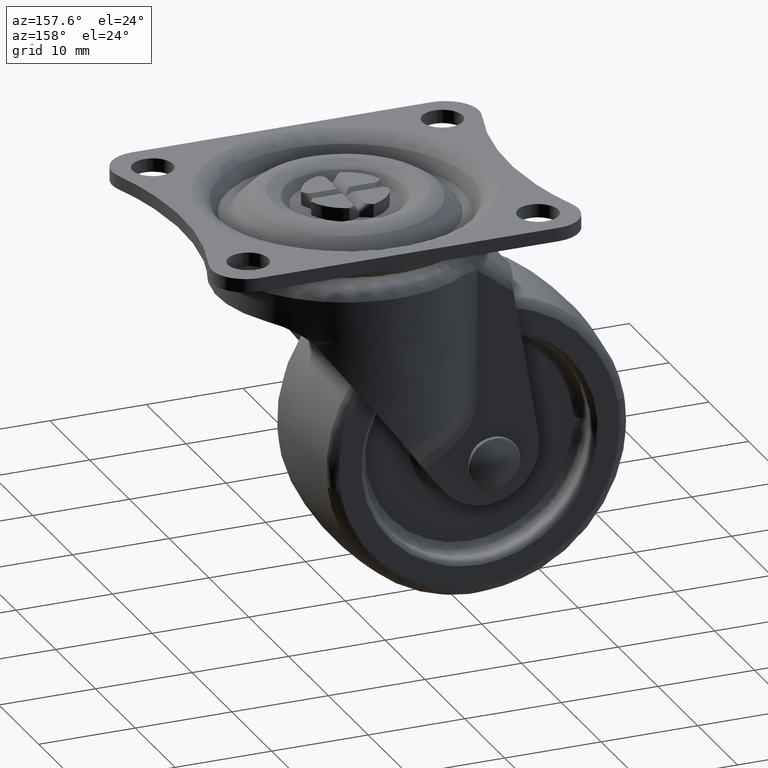
[diagram: clean part render]
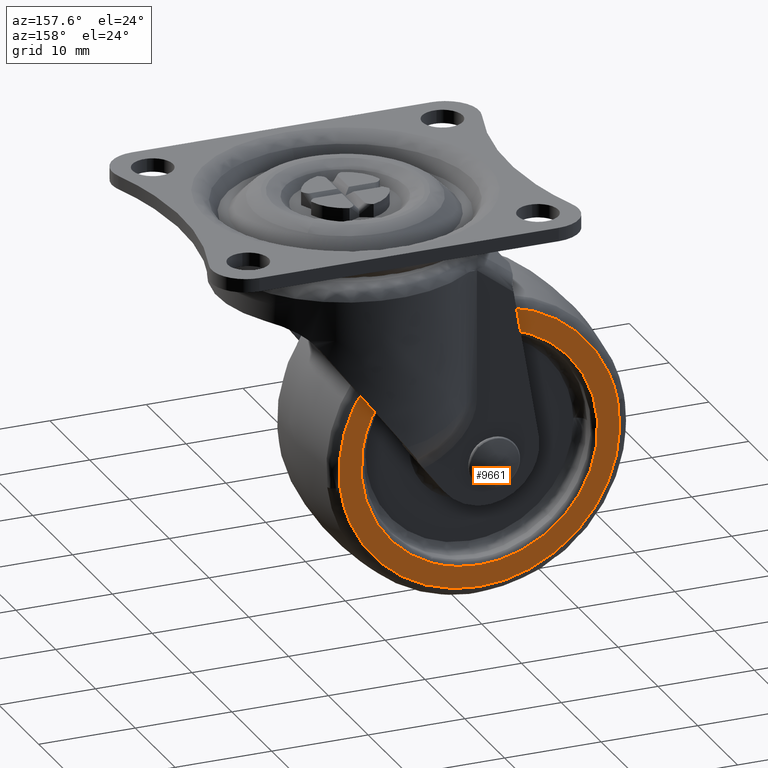
[diagram: same view with one face highlighted and labeled with its STEP entity id]
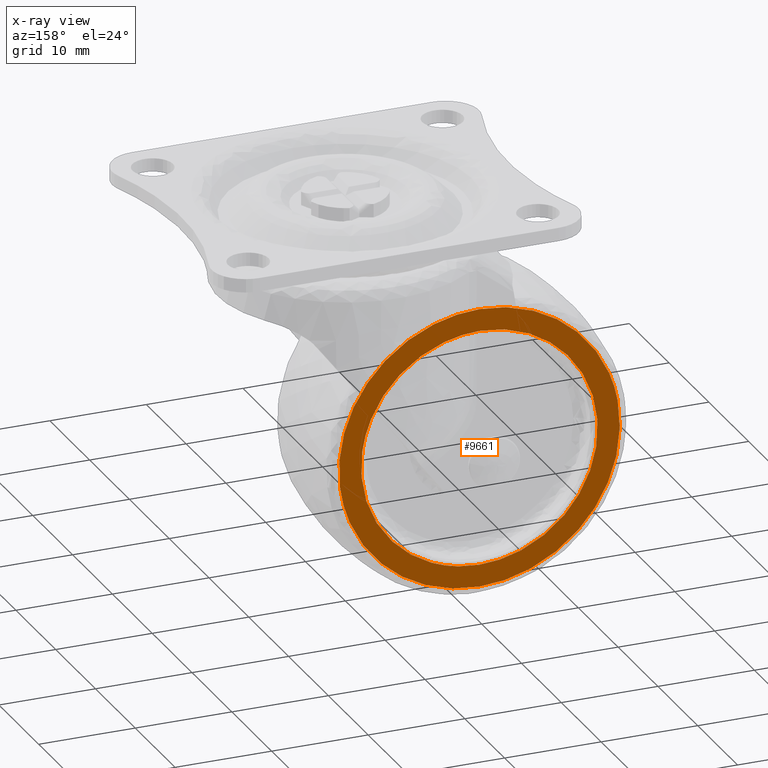
[diagram: x-ray of the same camera — body ghosted, the highlighted face saturated]
A machine part, auxiliary view. The second image highlights one B-rep face of the part: STEP entity #9661.
The next image is the same camera in x-ray: the body ghosted, the highlighted face saturated — about 0% of this face is hidden behind the body in this view.
In plain terms, the highlighted face is a freeform B-spline surface patch.
Its self-contained STEP definition (entity closure, byte-faithful):
#8250=CARTESIAN_POINT('',(4.935603836978956,7.0,-11.211704363351030));
#8251=VERTEX_POINT('',#8250);
#8267=CARTESIAN_POINT('',(0.0,7.0,-12.250000000000000));
#8268=VERTEX_POINT('',#8267);
#8269=CARTESIAN_POINT('',(0.0,7.0,-12.250000000000000));
#8270=CARTESIAN_POINT('',(2.577014272729893,7.0,-12.249999999999998));
#8271=CARTESIAN_POINT('',(4.935603836978956,7.0,-11.211704363351028));
#8279=(BOUNDED_CURVE()B_SPLINE_CURVE(2,(#8269,#8270,#8271),.UNSPECIFIED.,.F.,.U.)B_SPLINE_CURVE_WITH_KNOTS((3,3),(0.0,0.068414990139462),.UNSPECIFIED.)CURVE()GEOMETRIC_REPRESENTATION_ITEM()RATIONAL_B_SPLINE_CURVE((1.0,0.919846853291850,0.883563120517179))REPRESENTATION_ITEM(''));
#8280=EDGE_CURVE('',#8268,#8251,#8279,.T.);
#8282=CARTESIAN_POINT('',(0.0,7.0,12.250000000000000));
#8283=VERTEX_POINT('',#8282);
#8284=CARTESIAN_POINT('',(0.0,7.0,12.250000000000000));
#8285=CARTESIAN_POINT('',(-12.249999999999996,6.999999999999999,12.249999999999996));
#8286=CARTESIAN_POINT('',(-12.250000000000000,7.0,8.173480E-016));
#8287=CARTESIAN_POINT('',(-12.249999999999996,6.999999999999999,-12.249999999999996));
#8288=CARTESIAN_POINT('',(0.0,7.0,-12.250000000000000));
#8296=(BOUNDED_CURVE()B_SPLINE_CURVE(2,(#8284,#8285,#8286,#8287,#8288),.UNSPECIFIED.,.F.,.U.)B_SPLINE_CURVE_WITH_KNOTS((3,2,3),(0.500000000000000,0.750000000000000,1.0),.UNSPECIFIED.)CURVE()GEOMETRIC_REPRESENTATION_ITEM()RATIONAL_B_SPLINE_CURVE((1.0,0.707106781186547,1.0,0.707106781186547,1.0))REPRESENTATION_ITEM(''));
#8297=EDGE_CURVE('',#8283,#8268,#8296,.T.);
#8299=CARTESIAN_POINT('',(11.211704363351030,7.0,4.935603836978956));
#8300=VERTEX_POINT('',#8299);
#8301=CARTESIAN_POINT('',(11.211704363351028,7.0,4.935603836978956));
#8302=CARTESIAN_POINT('',(7.991769143771255,6.999999999999999,12.249999999999996));
#8303=CARTESIAN_POINT('',(0.0,7.0,12.250000000000000));
#8311=(BOUNDED_CURVE()B_SPLINE_CURVE(2,(#8301,#8302,#8303),.UNSPECIFIED.,.F.,.U.)B_SPLINE_CURVE_WITH_KNOTS((3,3),(0.318414990139462,0.500000000000000),.UNSPECIFIED.)CURVE()GEOMETRIC_REPRESENTATION_ITEM()RATIONAL_B_SPLINE_CURVE((0.883563120517179,0.787259927894698,1.0))REPRESENTATION_ITEM(''));
#8312=EDGE_CURVE('',#8300,#8283,#8311,.T.);
#8357=CARTESIAN_POINT('',(4.935603836978956,7.0,-11.211704363351028));
#8358=CARTESIAN_POINT('',(12.249999999999998,7.0,-7.991769143771257));
#8359=CARTESIAN_POINT('',(12.250000000000000,7.0,8.173480E-016));
#8360=CARTESIAN_POINT('',(12.250000000000000,7.000000000000001,2.577014272729898));
#8361=CARTESIAN_POINT('',(11.211704363351028,7.0,4.935603836978956));
#8369=(BOUNDED_CURVE()B_SPLINE_CURVE(2,(#8357,#8358,#8359,#8360,#8361),.UNSPECIFIED.,.F.,.U.)B_SPLINE_CURVE_WITH_KNOTS((3,2,3),(0.068414990139462,0.250000000000000,0.318414990139462),.UNSPECIFIED.)CURVE()GEOMETRIC_REPRESENTATION_ITEM()RATIONAL_B_SPLINE_CURVE((0.883563120517179,0.787259927894697,1.0,0.919846853291850,0.883563120517179))REPRESENTATION_ITEM(''));
#8370=EDGE_CURVE('',#8251,#8300,#8369,.T.);
#8399=CARTESIAN_POINT('',(14.433406335749989,6.999999999999970,-1.721420277750127));
#8400=VERTEX_POINT('',#8399);
#8401=CARTESIAN_POINT('',(0.0,7.0,14.535697650934241));
#8402=VERTEX_POINT('',#8401);
#8403=CARTESIAN_POINT('',(14.433406335749988,6.999999999999970,-1.721420277750127));
#8404=CARTESIAN_POINT('',(14.535697650934242,6.999999999999999,-0.863749348220568));
#8405=CARTESIAN_POINT('',(14.535697650934241,7.0,8.173480E-016));
#8406=CARTESIAN_POINT('',(14.535697650934241,6.999999999999999,14.535697650934241));
#8407=CARTESIAN_POINT('',(0.0,7.0,14.535697650934241));
#8415=(BOUNDED_CURVE()B_SPLINE_CURVE(2,(#8403,#8404,#8405,#8406,#8407),.UNSPECIFIED.,.F.,.U.)B_SPLINE_CURVE_WITH_KNOTS((3,2,3),(0.229495616428866,0.250000000000000,0.500000000000000),.UNSPECIFIED.)CURVE()GEOMETRIC_REPRESENTATION_ITEM()RATIONAL_B_SPLINE_CURVE((0.955895753455980,0.975977620384260,1.0,0.707106781186547,1.0))REPRESENTATION_ITEM(''));
#8416=EDGE_CURVE('',#8400,#8402,#8415,.T.);
#8418=CARTESIAN_POINT('',(-14.311329488514090,6.999999999999970,2.544082268024152));
#8419=VERTEX_POINT('',#8418);
#8420=CARTESIAN_POINT('',(0.0,7.0,14.535697650934241));
#8421=CARTESIAN_POINT('',(-12.179615859493595,6.999999999999999,14.535697650934244));
#8422=CARTESIAN_POINT('',(-14.311329488514092,6.999999999999970,2.544082268024152));
#8430=(BOUNDED_CURVE()B_SPLINE_CURVE(2,(#8420,#8421,#8422),.UNSPECIFIED.,.F.,.U.)B_SPLINE_CURVE_WITH_KNOTS((3,3),(0.500000000000000,0.719918253207514),.UNSPECIFIED.)CURVE()GEOMETRIC_REPRESENTATION_ITEM()RATIONAL_B_SPLINE_CURVE((1.0,0.742349739768878,0.937995440885674))REPRESENTATION_ITEM(''));
#8431=EDGE_CURVE('',#8402,#8419,#8430,.T.);
#8525=CARTESIAN_POINT('',(0.0,7.0,-14.535697650934241));
#8526=VERTEX_POINT('',#8525);
#8527=CARTESIAN_POINT('',(0.0,7.0,-14.535697650934241));
#8528=CARTESIAN_POINT('',(12.905093724362754,6.999999999999999,-14.535697650934235));
#8529=CARTESIAN_POINT('',(14.433406335749988,6.999999999999970,-1.721420277750127));
#8537=(BOUNDED_CURVE()B_SPLINE_CURVE(2,(#8527,#8528,#8529),.UNSPECIFIED.,.F.,.U.)B_SPLINE_CURVE_WITH_KNOTS((3,3),(0.0,0.229495616428866),.UNSPECIFIED.)CURVE()GEOMETRIC_REPRESENTATION_ITEM()RATIONAL_B_SPLINE_CURVE((1.0,0.731129160802288,0.955895753455980))REPRESENTATION_ITEM(''));
#8538=EDGE_CURVE('',#8526,#8400,#8537,.T.);
#8587=CARTESIAN_POINT('',(-14.311329488514087,6.999999999999970,2.544082268024152));
#8588=CARTESIAN_POINT('',(-14.535697650934241,7.0,1.281934892805403));
#8589=CARTESIAN_POINT('',(-14.535697650934241,7.0,8.173480E-016));
#8590=CARTESIAN_POINT('',(-14.535697650934241,6.999999999999999,-14.535697650934241));
#8591=CARTESIAN_POINT('',(0.0,7.0,-14.535697650934241));
#8599=(BOUNDED_CURVE()B_SPLINE_CURVE(2,(#8587,#8588,#8589,#8590,#8591),.UNSPECIFIED.,.F.,.U.)B_SPLINE_CURVE_WITH_KNOTS((3,2,3),(0.719918253207514,0.750000000000000,1.0),.UNSPECIFIED.)CURVE()GEOMETRIC_REPRESENTATION_ITEM()RATIONAL_B_SPLINE_CURVE((0.937995440885673,0.964757041417670,1.0,0.707106781186547,1.0))REPRESENTATION_ITEM(''));
#8600=EDGE_CURVE('',#8419,#8526,#8599,.T.);
#9644=CARTESIAN_POINT('',(-15.987788617532560,7.0,-15.987814062818030));
#9645=CARTESIAN_POINT('',(-15.987788617532560,7.0,15.987814582655091));
#9646=CARTESIAN_POINT('',(15.987531879657700,7.0,-15.987814062818030));
#9647=CARTESIAN_POINT('',(15.987531879657700,7.0,15.987814582655091));
#9648=B_SPLINE_SURFACE_WITH_KNOTS('',1,1,((#9644,#9646),(#9645,#9647)),.UNSPECIFIED.,.F.,.F.,.U.,(2,2),(2,2),(0.0,31.975628645473119),(0.0,31.975320497190250),.UNSPECIFIED.);
#9649=ORIENTED_EDGE('',*,*,#8600,.F.);
#9650=ORIENTED_EDGE('',*,*,#8431,.F.);
#9651=ORIENTED_EDGE('',*,*,#8416,.F.);
#9652=ORIENTED_EDGE('',*,*,#8538,.F.);
#9653=EDGE_LOOP('',(#9649,#9650,#9651,#9652));
#9654=FACE_OUTER_BOUND('',#9653,.T.);
#9655=ORIENTED_EDGE('',*,*,#8297,.T.);
#9656=ORIENTED_EDGE('',*,*,#8280,.T.);
#9657=ORIENTED_EDGE('',*,*,#8370,.T.);
#9658=ORIENTED_EDGE('',*,*,#8312,.T.);
#9659=EDGE_LOOP('',(#9655,#9656,#9657,#9658));
#9660=FACE_BOUND('',#9659,.T.);
#9661=ADVANCED_FACE('',(#9654,#9660),#9648,.T.);